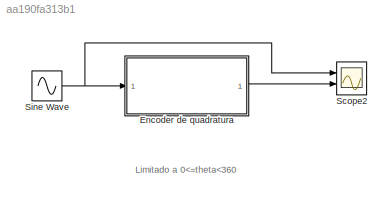
MODEL slx_aa190fa313b1
KIND model
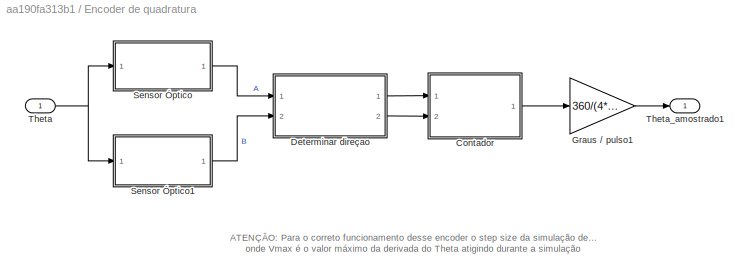
BLOCK [SubSystem] Encoder de quadratura
  FunctionWithSeparateData = off
  MaskHideContents = off
  MinAlgLoopOccurrences = off
  Opaque = off
  Ports = [1, 1]
  PropExecContextOutsideSubsystem = off
  RTWSystemCode = Auto
  RequestExecContextInheritance = off
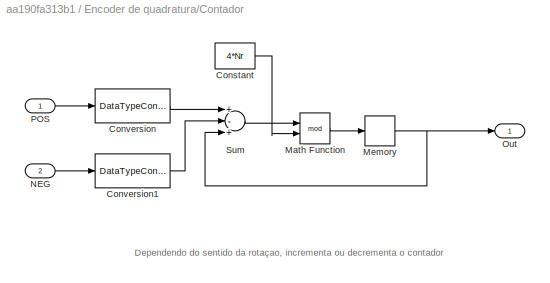
BLOCK [SubSystem] Encoder de quadratura/Contador
  FunctionWithSeparateData = off
  MaskHideContents = off
  MinAlgLoopOccurrences = off
  Opaque = off
  Ports = [2, 1]
  PropExecContextOutsideSubsystem = off
  RTWSystemCode = Auto
  RequestExecContextInheritance = off
BLOCK [Constant] Encoder de quadratura/Contador/Constant
  Value = 4*Nr
BLOCK [DataTypeConversion] Encoder de quadratura/Contador/Conversion
  OutDataTypeStr = int32
  RndMeth = Floor
  SaturateOnIntegerOverflow = off
BLOCK [DataTypeConversion] Encoder de quadratura/Contador/Conversion1
  OutDataTypeStr = int32
  RndMeth = Floor
  SaturateOnIntegerOverflow = off
BLOCK [Math] Encoder de quadratura/Contador/Math Function
  Operator = mod
  Ports = [2, 1]
BLOCK [Memory] Encoder de quadratura/Contador/Memory
BLOCK [Inport] Encoder de quadratura/Contador/NEG
  IconDisplay = Port number
  Port = 2
BLOCK [Outport] Encoder de quadratura/Contador/Out
  IconDisplay = Port number
BLOCK [Inport] Encoder de quadratura/Contador/POS
  IconDisplay = Port number
BLOCK [Sum] Encoder de quadratura/Contador/Sum
  InputSameDT = off
  Inputs = +-+
  OutDataTypeStr = Inherit: Inherit via internal rule
  Ports = [3, 1]
  SaturateOnIntegerOverflow = off
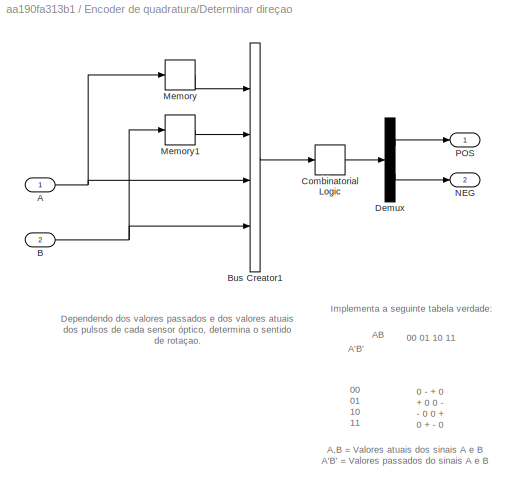
BLOCK [SubSystem] Encoder de quadratura/Determinar direçao
  FunctionWithSeparateData = off
  MaskHideContents = off
  MinAlgLoopOccurrences = off
  Opaque = off
  Ports = [2, 2]
  PropExecContextOutsideSubsystem = off
  RTWSystemCode = Auto
  RequestExecContextInheritance = off
BLOCK [Inport] Encoder de quadratura/Determinar direçao/A
  IconDisplay = Port number
BLOCK [Inport] Encoder de quadratura/Determinar direçao/B
  IconDisplay = Port number
  Port = 2
BLOCK [BusCreator] Encoder de quadratura/Determinar direçao/Bus Creator1
  DisplayOption = bar
  Ports = [4, 1]
BLOCK [CombinatorialLogic] Encoder de quadratura/Determinar direçao/Combinatorial  Logic
  TruthTable = [ 0 0 ; 0 1 ; 1 0 ; 0 0 ; 1 0 ; 0 0 ; 0 0 ; 0 1 ; 0 1 ; 0 0 ; 0 0 ; 1 0 ; 0 0 ; 1 0 ; 0 1 ; 0 0]
BLOCK [Demux] Encoder de quadratura/Determinar direçao/Demux
  DisplayOption = bar
  Outputs = 2
  Ports = [1, 2]
BLOCK [Memory] Encoder de quadratura/Determinar direçao/Memory
BLOCK [Memory] Encoder de quadratura/Determinar direçao/Memory1
BLOCK [Outport] Encoder de quadratura/Determinar direçao/NEG
  IconDisplay = Port number
  Port = 2
BLOCK [Outport] Encoder de quadratura/Determinar direçao/POS
  IconDisplay = Port number
BLOCK [Gain] Encoder de quadratura/Graus // pulso1
  Gain = 360/(4*Nr)
  OutDataTypeStr = Inherit: Inherit via internal rule
  ParamDataTypeStr = Inherit: Inherit via internal rule
  SaturateOnIntegerOverflow = off
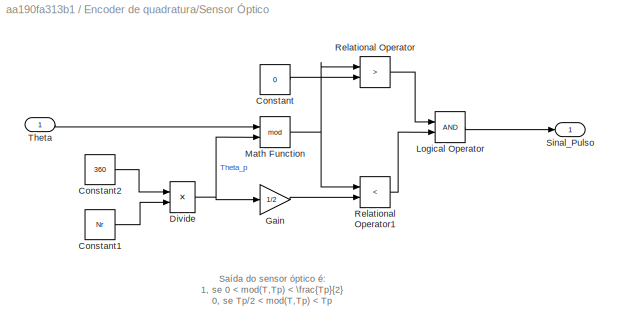
BLOCK [SubSystem] Encoder de quadratura/Sensor Óptico
  FunctionWithSeparateData = off
  MaskHideContents = off
  MinAlgLoopOccurrences = off
  Opaque = off
  Ports = [1, 1]
  PropExecContextOutsideSubsystem = off
  RTWSystemCode = Auto
  RequestExecContextInheritance = off
BLOCK [Constant] Encoder de quadratura/Sensor Óptico/Constant
  Value = 0
BLOCK [Constant] Encoder de quadratura/Sensor Óptico/Constant1
  Value = Nr
BLOCK [Constant] Encoder de quadratura/Sensor Óptico/Constant2
  Value = 360
BLOCK [Product] Encoder de quadratura/Sensor Óptico/Divide
  InputSameDT = off
  Inputs = */
  OutDataTypeStr = Inherit: Inherit via internal rule
  Ports = [2, 1]
  RndMeth = Floor
  SaturateOnIntegerOverflow = off
BLOCK [Gain] Encoder de quadratura/Sensor Óptico/Gain
  Gain = 1/2
  OutDataTypeStr = Inherit: Inherit via internal rule
  ParamDataTypeStr = Inherit: Inherit via internal rule
  SaturateOnIntegerOverflow = off
BLOCK [Logic] Encoder de quadratura/Sensor Óptico/Logical Operator
  AllPortsSameDT = off
  OutDataTypeStr = boolean
  Ports = [2, 1]
BLOCK [Math] Encoder de quadratura/Sensor Óptico/Math Function
  Operator = mod
  Ports = [2, 1]
BLOCK [RelationalOperator] Encoder de quadratura/Sensor Óptico/Relational Operator
  InputSameDT = off
  Operator = >
  OutDataTypeStr = boolean
  Ports = [2, 1]
BLOCK [RelationalOperator] Encoder de quadratura/Sensor Óptico/Relational Operator1
  InputSameDT = off
  Operator = <
  OutDataTypeStr = boolean
  Ports = [2, 1]
BLOCK [Outport] Encoder de quadratura/Sensor Óptico/Sinal_Pulso
  IconDisplay = Port number
BLOCK [Inport] Encoder de quadratura/Sensor Óptico/Theta
  IconDisplay = Port number
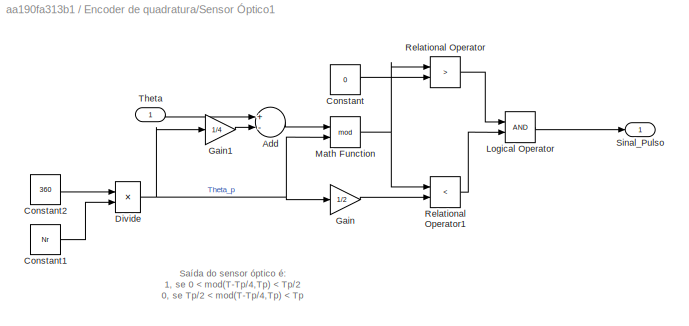
BLOCK [SubSystem] Encoder de quadratura/Sensor Óptico1
  FunctionWithSeparateData = off
  MaskHideContents = off
  MinAlgLoopOccurrences = off
  Opaque = off
  Ports = [1, 1]
  PropExecContextOutsideSubsystem = off
  RTWSystemCode = Auto
  RequestExecContextInheritance = off
BLOCK [Sum] Encoder de quadratura/Sensor Óptico1/Add
  InputSameDT = off
  Inputs = +-
  OutDataTypeStr = Inherit: Inherit via internal rule
  Ports = [2, 1]
  SaturateOnIntegerOverflow = off
BLOCK [Constant] Encoder de quadratura/Sensor Óptico1/Constant
  Value = 0
BLOCK [Constant] Encoder de quadratura/Sensor Óptico1/Constant1
  Value = Nr
BLOCK [Constant] Encoder de quadratura/Sensor Óptico1/Constant2
  Value = 360
BLOCK [Product] Encoder de quadratura/Sensor Óptico1/Divide
  InputSameDT = off
  Inputs = */
  OutDataTypeStr = Inherit: Inherit via internal rule
  Ports = [2, 1]
  RndMeth = Floor
  SaturateOnIntegerOverflow = off
BLOCK [Gain] Encoder de quadratura/Sensor Óptico1/Gain
  Gain = 1/2
  OutDataTypeStr = Inherit: Inherit via internal rule
  ParamDataTypeStr = Inherit: Inherit via internal rule
  SaturateOnIntegerOverflow = off
BLOCK [Gain] Encoder de quadratura/Sensor Óptico1/Gain1
  Gain = 1/4
  OutDataTypeStr = Inherit: Inherit via internal rule
  ParamDataTypeStr = Inherit: Inherit via internal rule
  SaturateOnIntegerOverflow = off
BLOCK [Logic] Encoder de quadratura/Sensor Óptico1/Logical Operator
  AllPortsSameDT = off
  OutDataTypeStr = boolean
  Ports = [2, 1]
BLOCK [Math] Encoder de quadratura/Sensor Óptico1/Math Function
  Operator = mod
  Ports = [2, 1]
BLOCK [RelationalOperator] Encoder de quadratura/Sensor Óptico1/Relational Operator
  InputSameDT = off
  Operator = >
  OutDataTypeStr = boolean
  Ports = [2, 1]
BLOCK [RelationalOperator] Encoder de quadratura/Sensor Óptico1/Relational Operator1
  InputSameDT = off
  Operator = <
  OutDataTypeStr = boolean
  Ports = [2, 1]
BLOCK [Outport] Encoder de quadratura/Sensor Óptico1/Sinal_Pulso
  IconDisplay = Port number
BLOCK [Inport] Encoder de quadratura/Sensor Óptico1/Theta
  IconDisplay = Port number
BLOCK [Inport] Encoder de quadratura/Theta
  IconDisplay = Port number
BLOCK [Outport] Encoder de quadratura/Theta_amostrado1
  IconDisplay = Port number
BLOCK [Scope] Scope2
  DataFormat = StructureWithTime
  Floating = off
  LegendLocations = 0.81108     0.92767     0.14249    0.025577\n0.83547     0.45723     0.21438    0.025577
  LimitDataPoints = off
  NumInputPorts = 2
  Ports = [2]
  SampleTime = 0
  ShowLegends = on
  YMax = 575~375
  YMin = 150~0
  ZoomMode = yonly
BLOCK [Sin] Sine Wave
  Amplitude = 360
  Ports = [0, 1]
  SampleTime = 0
ANNOTATION (root): Limitado a 0<=theta<360
ANNOTATION Encoder de quadratura: ATENÇÃO: Para o correto funcionamento desse encoder o step size da simulação deve ser menor do que 360/(4*Nr*Vmax), onde Vmax é o valor máximo da derivada do Theta atigindo durante a simulação
ANNOTATION Encoder de quadratura/Contador: Dependendo do sentido da rotaçao, incrementa ou decrementa o contador
ANNOTATION Encoder de quadratura/Determinar direçao: 0 - + 0 + 0 0 - - 0 0 + 0 + - 0
ANNOTATION Encoder de quadratura/Determinar direçao: 00 01 10 11
ANNOTATION Encoder de quadratura/Determinar direçao: A'B'
ANNOTATION Encoder de quadratura/Determinar direçao: A,B = Valores atuais dos sinais A e B A'B' = Valores passados do sinais A e B
ANNOTATION Encoder de quadratura/Determinar direçao: AB
ANNOTATION Encoder de quadratura/Determinar direçao: Dependendo dos valores passados e dos valores atuais dos pulsos de cada sensor óptico, determina o sentido de rotaçao.
ANNOTATION Encoder de quadratura/Determinar direçao: Implementa a seguinte tabela verdade:
ANNOTATION Encoder de quadratura/Sensor Óptico: Saída do sensor óptico é: 1, se 0 < mod(T,Tp) < \frac{Tp}{2} 0, se Tp/2 < mod(T,Tp) < Tp
ANNOTATION Encoder de quadratura/Sensor Óptico1: Saída do sensor óptico é: 1, se 0 < mod(T-Tp/4,Tp) < Tp/2 0, se Tp/2 < mod(T-Tp/4,Tp) < Tp
LINE Encoder de quadratura/Contador/Constant:1 -> Encoder de quadratura/Contador/Math Function:2
LINE Encoder de quadratura/Contador/Conversion1:1 -> Encoder de quadratura/Contador/Sum:2
LINE Encoder de quadratura/Contador/Conversion:1 -> Encoder de quadratura/Contador/Sum:1
LINE Encoder de quadratura/Contador/Math Function:1 -> Encoder de quadratura/Contador/Memory:1
NET Encoder de quadratura/Contador/Memory:1 -> Encoder de quadratura/Contador/Out:1, Encoder de quadratura/Contador/Sum:3
LINE Encoder de quadratura/Contador/NEG:1 -> Encoder de quadratura/Contador/Conversion1:1
LINE Encoder de quadratura/Contador/POS:1 -> Encoder de quadratura/Contador/Conversion:1
LINE Encoder de quadratura/Contador/Sum:1 -> Encoder de quadratura/Contador/Math Function:1
LINE Encoder de quadratura/Contador:1 -> Encoder de quadratura/Graus // pulso1:1
NET Encoder de quadratura/Determinar direçao/A:1 -> Encoder de quadratura/Determinar direçao/Bus Creator1:3, Encoder de quadratura/Determinar direçao/Memory:1
NET Encoder de quadratura/Determinar direçao/B:1 -> Encoder de quadratura/Determinar direçao/Bus Creator1:4, Encoder de quadratura/Determinar direçao/Memory1:1
LINE Encoder de quadratura/Determinar direçao/Bus Creator1:1 -> Encoder de quadratura/Determinar direçao/Combinatorial  Logic:1
LINE Encoder de quadratura/Determinar direçao/Combinatorial  Logic:1 -> Encoder de quadratura/Determinar direçao/Demux:1
LINE Encoder de quadratura/Determinar direçao/Demux:1 -> Encoder de quadratura/Determinar direçao/POS:1
LINE Encoder de quadratura/Determinar direçao/Demux:2 -> Encoder de quadratura/Determinar direçao/NEG:1
LINE Encoder de quadratura/Determinar direçao/Memory1:1 -> Encoder de quadratura/Determinar direçao/Bus Creator1:2
LINE Encoder de quadratura/Determinar direçao/Memory:1 -> Encoder de quadratura/Determinar direçao/Bus Creator1:1
LINE Encoder de quadratura/Determinar direçao:1 -> Encoder de quadratura/Contador:1
LINE Encoder de quadratura/Determinar direçao:2 -> Encoder de quadratura/Contador:2
LINE Encoder de quadratura/Graus // pulso1:1 -> Encoder de quadratura/Theta_amostrado1:1
LINE Encoder de quadratura/Sensor Óptico/Constant1:1 -> Encoder de quadratura/Sensor Óptico/Divide:2
LINE Encoder de quadratura/Sensor Óptico/Constant2:1 -> Encoder de quadratura/Sensor Óptico/Divide:1
LINE Encoder de quadratura/Sensor Óptico/Constant:1 -> Encoder de quadratura/Sensor Óptico/Relational Operator:2
NET Encoder de quadratura/Sensor Óptico/Divide:1 -> Encoder de quadratura/Sensor Óptico/Gain:1, Encoder de quadratura/Sensor Óptico/Math Function:2
LINE Encoder de quadratura/Sensor Óptico/Gain:1 -> Encoder de quadratura/Sensor Óptico/Relational Operator1:2
LINE Encoder de quadratura/Sensor Óptico/Logical Operator:1 -> Encoder de quadratura/Sensor Óptico/Sinal_Pulso:1
NET Encoder de quadratura/Sensor Óptico/Math Function:1 -> Encoder de quadratura/Sensor Óptico/Relational Operator1:1, Encoder de quadratura/Sensor Óptico/Relational Operator:1
LINE Encoder de quadratura/Sensor Óptico/Relational Operator1:1 -> Encoder de quadratura/Sensor Óptico/Logical Operator:2
LINE Encoder de quadratura/Sensor Óptico/Relational Operator:1 -> Encoder de quadratura/Sensor Óptico/Logical Operator:1
LINE Encoder de quadratura/Sensor Óptico/Theta:1 -> Encoder de quadratura/Sensor Óptico/Math Function:1
LINE Encoder de quadratura/Sensor Óptico1/Add:1 -> Encoder de quadratura/Sensor Óptico1/Math Function:1
LINE Encoder de quadratura/Sensor Óptico1/Constant1:1 -> Encoder de quadratura/Sensor Óptico1/Divide:2
LINE Encoder de quadratura/Sensor Óptico1/Constant2:1 -> Encoder de quadratura/Sensor Óptico1/Divide:1
LINE Encoder de quadratura/Sensor Óptico1/Constant:1 -> Encoder de quadratura/Sensor Óptico1/Relational Operator:2
NET Encoder de quadratura/Sensor Óptico1/Divide:1 -> Encoder de quadratura/Sensor Óptico1/Gain1:1, Encoder de quadratura/Sensor Óptico1/Gain:1, Encoder de quadratura/Sensor Óptico1/Math Function:2
LINE Encoder de quadratura/Sensor Óptico1/Gain1:1 -> Encoder de quadratura/Sensor Óptico1/Add:2
LINE Encoder de quadratura/Sensor Óptico1/Gain:1 -> Encoder de quadratura/Sensor Óptico1/Relational Operator1:2
LINE Encoder de quadratura/Sensor Óptico1/Logical Operator:1 -> Encoder de quadratura/Sensor Óptico1/Sinal_Pulso:1
NET Encoder de quadratura/Sensor Óptico1/Math Function:1 -> Encoder de quadratura/Sensor Óptico1/Relational Operator1:1, Encoder de quadratura/Sensor Óptico1/Relational Operator:1
LINE Encoder de quadratura/Sensor Óptico1/Relational Operator1:1 -> Encoder de quadratura/Sensor Óptico1/Logical Operator:2
LINE Encoder de quadratura/Sensor Óptico1/Relational Operator:1 -> Encoder de quadratura/Sensor Óptico1/Logical Operator:1
LINE Encoder de quadratura/Sensor Óptico1/Theta:1 -> Encoder de quadratura/Sensor Óptico1/Add:1
LINE Encoder de quadratura/Sensor Óptico1:1 -> Encoder de quadratura/Determinar direçao:2
LINE Encoder de quadratura/Sensor Óptico:1 -> Encoder de quadratura/Determinar direçao:1
NET Encoder de quadratura/Theta:1 -> Encoder de quadratura/Sensor Óptico1:1, Encoder de quadratura/Sensor Óptico:1
LINE Encoder de quadratura:1 -> Scope2:2
NET Sine Wave:1 -> Encoder de quadratura:1, Scope2:1
note: NET lines group one-source signal fan-out (src -> all destinations, sorted); 1:1 wires keep LINE
